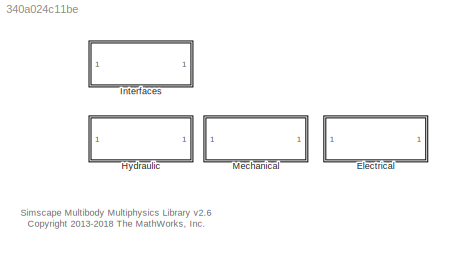
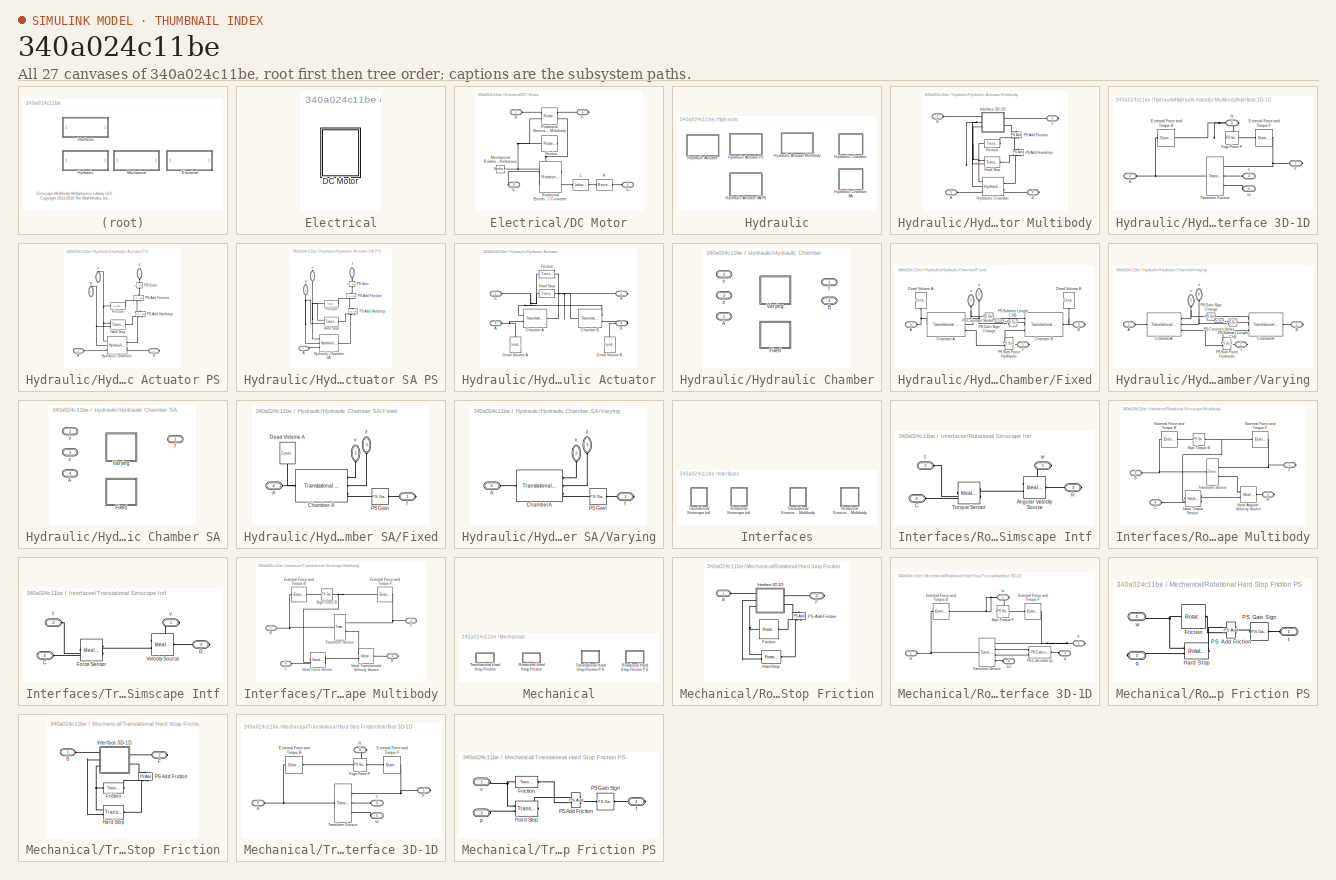
[diagram: thumbnail index - all 27 canvases of the model, root first then tree order]
MODEL slx_340a024c11be
KIND library
CONFIG AbsTol = auto
CONFIG EnableMultiTasking = on
CONFIG FixedStep = auto
CONFIG MaxStep = auto
CONFIG MinStep = auto
CONFIG RelTol = 1e-3
CONFIG SampleTimeConstraint = Unconstrained
CONFIG Solver = ode45
CONFIG SolverName = ode45
CONFIG StartTime = 0.0
CONFIG StopTime = 10.0
BLOCK [SubSystem] Electrical
  Ports = []
  RequestExecContextInheritance = off
BLOCK [SubSystem] Electrical/DC Motor
  Ports = [0, 0, 0, 0, 0, 2, 2]
  RequestExecContextInheritance = off
  Tag = PublishSubsystem
BLOCK [PMIOPort] Electrical/DC Motor/B
  Side = Left
BLOCK [PMIOPort] Electrical/DC Motor/F
  Port = 3
  Side = Right
BLOCK [Reference] Electrical/DC Motor/Friction  REF=fl_lib/Mechanical/Rotational Elements/Rotational Friction
  Ports = [0, 0, 0, 0, 0, 1, 1]
  SourceBlock = fl_lib/Mechanical/Rotational Elements/Rotational Friction
  SourceProductBaseCode = SS
  SourceProductName = Simscape
  SourceType = Rotational Friction
BLOCK [Reference] Electrical/DC Motor/L  REF=fl_lib/Electrical/Electrical Elements/Inductor
  Ports = [0, 0, 0, 0, 0, 1, 1]
  SourceBlock = fl_lib/Electrical/Electrical Elements/Inductor
  SourceProductBaseCode = SS
  SourceProductName = Simscape
  SourceType = Inductor
BLOCK [Reference] Electrical/DC Motor/Mechanical Rotational Reference  REF=fl_lib/Mechanical/Rotational Elements/Mechanical
Rotational Reference
  Ports = [0, 0, 0, 0, 0, 1]
  SourceBlock = fl_lib/Mechanical/Rotational Elements/Mechanical\nRotational Reference
  SourceProductBaseCode = SS
  SourceProductName = Simscape
  SourceType = Mechanical\nRotational Reference
BLOCK [Reference] Electrical/DC Motor/R  REF=fl_lib/Electrical/Electrical Elements/Resistor
  Ports = [0, 0, 0, 0, 0, 1, 1]
  SourceBlock = fl_lib/Electrical/Electrical Elements/Resistor
  SourceProductBaseCode = SS
  SourceProductName = Simscape
  SourceType = Resistor
  Tag = Factory Generic
BLOCK [Reference] Electrical/DC Motor/Rotational Electromechanical Converter  REF=fl_lib/Electrical/Electrical Elements/Rotational
Electromechanical
Converter
  Ports = [0, 0, 0, 0, 0, 2, 2]
  SourceBlock = fl_lib/Electrical/Electrical Elements/Rotational\nElectromechanical\nConverter
  SourceProductBaseCode = SS
  SourceProductName = Simscape
  SourceType = Rotational\nElectromechanical\nConverter
BLOCK [Reference] Electrical/DC Motor/Rotational Simscape Multibody  REF=$bdroot/Interfaces/Rotational
Simscape Multibody
  Ports = [0, 0, 0, 0, 0, 2, 2]
  SourceBlock = $bdroot/Interfaces/Rotational\nSimscape Multibody
  SourceType = SubSystem
  Tag = PublishSubsystem
BLOCK [PMIOPort] Electrical/DC Motor/V+
  Port = 2
  Side = Left
BLOCK [PMIOPort] Electrical/DC Motor/V-
  Port = 4
  Side = Right
BLOCK [SubSystem] Hydraulic
  Ports = []
  RequestExecContextInheritance = off
BLOCK [SubSystem] Hydraulic/Hydraulic Actuator
  Ports = [0, 0, 0, 0, 0, 2, 2]
  RequestExecContextInheritance = off
BLOCK [SubSystem] Hydraulic/Hydraulic Actuator Multibody
  Ports = [0, 0, 0, 0, 0, 2, 2]
  RequestExecContextInheritance = off
BLOCK [PMIOPort] Hydraulic/Hydraulic Actuator Multibody/ B
  Port = 4
  Side = Right
BLOCK [PMIOPort] Hydraulic/Hydraulic Actuator Multibody/A
  Port = 3
  Side = Left
BLOCK [PMIOPort] Hydraulic/Hydraulic Actuator Multibody/B 
  Side = Left
  Tag = CustomStyle
BLOCK [PMIOPort] Hydraulic/Hydraulic Actuator Multibody/F
  Port = 2
  Side = Right
  Tag = CustomStyle
BLOCK [Reference] Hydraulic/Hydraulic Actuator Multibody/Friction  REF=forcesPS_lib/Mechanical/Translational
Friction Force
  Ports = [0, 0, 0, 0, 0, 1, 1]
  SourceBlock = forcesPS_lib/Mechanical/Translational\nFriction Force
  SourceType = Translational\nFriction Force
BLOCK [Reference] Hydraulic/Hydraulic Actuator Multibody/Hard Stop  REF=forcesPS_lib/Mechanical/Translational Hard
Stop Force
  Ports = [0, 0, 0, 0, 0, 2, 1]
  SourceBlock = forcesPS_lib/Mechanical/Translational Hard\nStop Force
  SourceType = Translational Hard\nStop Force
BLOCK [Reference] Hydraulic/Hydraulic Actuator Multibody/Hydraulic Chamber  REF=$bdroot/Hydraulic/Hydraulic Chamber
  Ports = [0, 0, 0, 0, 0, 3, 2]
  SourceBlock = $bdroot/Hydraulic/Hydraulic Chamber
  SourceType = SubSystem
BLOCK [SubSystem] Hydraulic/Hydraulic Actuator Multibody/Interface 3D-1D
  Ports = [0, 0, 0, 0, 0, 3, 2]
  RequestExecContextInheritance = off
BLOCK [PMIOPort] Hydraulic/Hydraulic Actuator Multibody/Interface 3D-1D/B
  Port = 2
  Side = Left
BLOCK [Reference] Hydraulic/Hydraulic Actuator Multibody/Interface 3D-1D/External Force and Torque B  REF=sm_lib/Forces and
Torques/External Force
and Torque
  Ports = [0, 0, 0, 0, 0, 1, 1]
  SourceBlock = sm_lib/Forces and\nTorques/External Force\nand Torque
  SourceProductBaseCode = MS
  SourceProductName = Simscape Multibody
  SourceType = External Force\nand Torque
BLOCK [Reference] Hydraulic/Hydraulic Actuator Multibody/Interface 3D-1D/External Force and Torque F  REF=sm_lib/Forces and
Torques/External Force
and Torque
  Ports = [0, 0, 0, 0, 0, 1, 1]
  SourceBlock = sm_lib/Forces and\nTorques/External Force\nand Torque
  SourceProductBaseCode = MS
  SourceProductName = Simscape Multibody
  SourceType = External Force\nand Torque
BLOCK [PMIOPort] Hydraulic/Hydraulic Actuator Multibody/Interface 3D-1D/F
  Side = Right
BLOCK [Reference] Hydraulic/Hydraulic Actuator Multibody/Interface 3D-1D/Sign Force F  REF=fl_lib/Physical Signals/Functions/PS Gain
  Ports = [0, 0, 0, 0, 0, 1, 1]
  SourceBlock = fl_lib/Physical Signals/Functions/PS Gain
  SourceProductBaseCode = SS
  SourceProductName = Simscape
  SourceType = PS Gain
BLOCK [Reference] Hydraulic/Hydraulic Actuator Multibody/Interface 3D-1D/Transform Sensor  REF=sm_lib/Frames and
Transforms/Transform
Sensor
  Ports = [0, 0, 0, 0, 0, 1, 3]
  SourceBlock = sm_lib/Frames and\nTransforms/Transform\nSensor
  SourceProductBaseCode = MS
  SourceProductName = Simscape Multibody
  SourceType = Transform\nSensor
BLOCK [PMIOPort] Hydraulic/Hydraulic Actuator Multibody/Interface 3D-1D/fz
  Port = 5
  Side = Right
BLOCK [PMIOPort] Hydraulic/Hydraulic Actuator Multibody/Interface 3D-1D/vz
  Port = 4
  Side = Left
BLOCK [PMIOPort] Hydraulic/Hydraulic Actuator Multibody/Interface 3D-1D/z
  Port = 3
  Side = Left
BLOCK [Reference] Hydraulic/Hydraulic Actuator Multibody/PS Add Friction  REF=fl_lib/Physical Signals/Functions/PS Add
  Ports = [0, 0, 0, 0, 0, 2, 1]
  SourceBlock = fl_lib/Physical Signals/Functions/PS Add
  SourceProductBaseCode = SS
  SourceProductName = Simscape
  SourceType = PS Add
BLOCK [Reference] Hydraulic/Hydraulic Actuator Multibody/PS Add Hardstop  REF=fl_lib/Physical Signals/Functions/PS Add
  Ports = [0, 0, 0, 0, 0, 2, 1]
  SourceBlock = fl_lib/Physical Signals/Functions/PS Add
  SourceProductBaseCode = SS
  SourceProductName = Simscape
  SourceType = PS Add
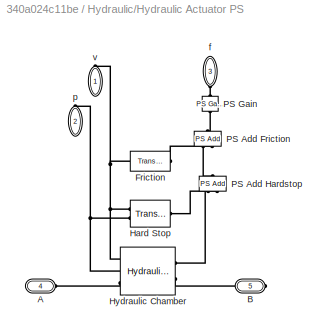
BLOCK [SubSystem] Hydraulic/Hydraulic Actuator PS
  Ports = [0, 0, 0, 0, 0, 2, 3]
  RequestExecContextInheritance = off
BLOCK [PMIOPort] Hydraulic/Hydraulic Actuator PS/A
  Port = 4
  Side = Left
BLOCK [PMIOPort] Hydraulic/Hydraulic Actuator PS/B
  Port = 5
  Side = Right
BLOCK [Reference] Hydraulic/Hydraulic Actuator PS/Friction  REF=forcesPS_lib/Mechanical/Translational
Friction Force
  Ports = [0, 0, 0, 0, 0, 1, 1]
  SourceBlock = forcesPS_lib/Mechanical/Translational\nFriction Force
  SourceType = Translational\nFriction Force
BLOCK [Reference] Hydraulic/Hydraulic Actuator PS/Hard Stop  REF=forcesPS_lib/Mechanical/Translational Hard
Stop Force
  Ports = [0, 0, 0, 0, 0, 2, 1]
  SourceBlock = forcesPS_lib/Mechanical/Translational Hard\nStop Force
  SourceType = Translational Hard\nStop Force
BLOCK [Reference] Hydraulic/Hydraulic Actuator PS/Hydraulic Chamber  REF=$bdroot/Hydraulic/Hydraulic Chamber
  Ports = [0, 0, 0, 0, 0, 3, 2]
  SourceBlock = $bdroot/Hydraulic/Hydraulic Chamber
  SourceType = SubSystem
BLOCK [Reference] Hydraulic/Hydraulic Actuator PS/PS Add Friction  REF=fl_lib/Physical Signals/Functions/PS Add
  Ports = [0, 0, 0, 0, 0, 2, 1]
  SourceBlock = fl_lib/Physical Signals/Functions/PS Add
  SourceProductBaseCode = SS
  SourceProductName = Simscape
  SourceType = PS Add
BLOCK [Reference] Hydraulic/Hydraulic Actuator PS/PS Add Hardstop  REF=fl_lib/Physical Signals/Functions/PS Add
  Ports = [0, 0, 0, 0, 0, 2, 1]
  SourceBlock = fl_lib/Physical Signals/Functions/PS Add
  SourceProductBaseCode = SS
  SourceProductName = Simscape
  SourceType = PS Add
BLOCK [Reference] Hydraulic/Hydraulic Actuator PS/PS Gain  REF=fl_lib/Physical Signals/Functions/PS Gain
  Ports = [0, 0, 0, 0, 0, 1, 1]
  SourceBlock = fl_lib/Physical Signals/Functions/PS Gain
  SourceProductBaseCode = SS
  SourceProductName = Simscape
  SourceType = PS Gain
BLOCK [PMIOPort] Hydraulic/Hydraulic Actuator PS/f
  Port = 3
  Side = Left
BLOCK [PMIOPort] Hydraulic/Hydraulic Actuator PS/p
  Port = 2
  Side = Right
BLOCK [PMIOPort] Hydraulic/Hydraulic Actuator PS/v
  Side = Right
BLOCK [SubSystem] Hydraulic/Hydraulic Actuator SA PS
  Ports = [0, 0, 0, 0, 0, 2, 2]
  RequestExecContextInheritance = off
BLOCK [PMIOPort] Hydraulic/Hydraulic Actuator SA PS/A
  Port = 4
  Side = Left
BLOCK [Reference] Hydraulic/Hydraulic Actuator SA PS/Friction  REF=forcesPS_lib/Mechanical/Translational
Friction Force
  Ports = [0, 0, 0, 0, 0, 1, 1]
  SourceBlock = forcesPS_lib/Mechanical/Translational\nFriction Force
  SourceType = Translational\nFriction Force
BLOCK [Reference] Hydraulic/Hydraulic Actuator SA PS/Hard Stop  REF=forcesPS_lib/Mechanical/Translational Hard
Stop Force
  Ports = [0, 0, 0, 0, 0, 2, 1]
  SourceBlock = forcesPS_lib/Mechanical/Translational Hard\nStop Force
  SourceType = Translational Hard\nStop Force
BLOCK [Reference] Hydraulic/Hydraulic Actuator SA PS/Hydraulic Chamber SA  REF=$bdroot/Hydraulic/Hydraulic Chamber SA
  Ports = [0, 0, 0, 0, 0, 3, 1]
  SourceBlock = $bdroot/Hydraulic/Hydraulic Chamber SA
  SourceType = SubSystem
BLOCK [Reference] Hydraulic/Hydraulic Actuator SA PS/PS Add Friction  REF=fl_lib/Physical Signals/Functions/PS Add
  Ports = [0, 0, 0, 0, 0, 2, 1]
  SourceBlock = fl_lib/Physical Signals/Functions/PS Add
  SourceProductBaseCode = SS
  SourceProductName = Simscape
  SourceType = PS Add
BLOCK [Reference] Hydraulic/Hydraulic Actuator SA PS/PS Add Hardstop  REF=fl_lib/Physical Signals/Functions/PS Add
  Ports = [0, 0, 0, 0, 0, 2, 1]
  SourceBlock = fl_lib/Physical Signals/Functions/PS Add
  SourceProductBaseCode = SS
  SourceProductName = Simscape
  SourceType = PS Add
BLOCK [Reference] Hydraulic/Hydraulic Actuator SA PS/PS Gain  REF=fl_lib/Physical Signals/Functions/PS Gain
  Ports = [0, 0, 0, 0, 0, 1, 1]
  SourceBlock = fl_lib/Physical Signals/Functions/PS Gain
  SourceProductBaseCode = SS
  SourceProductName = Simscape
  SourceType = PS Gain
BLOCK [PMIOPort] Hydraulic/Hydraulic Actuator SA PS/f
  Port = 3
  Side = Left
BLOCK [PMIOPort] Hydraulic/Hydraulic Actuator SA PS/p
  Port = 2
  Side = Right
BLOCK [PMIOPort] Hydraulic/Hydraulic Actuator SA PS/v
  Side = Right
BLOCK [PMIOPort] Hydraulic/Hydraulic Actuator/A
  Port = 3
  Side = Left
  Tag = PMCPort
BLOCK [PMIOPort] Hydraulic/Hydraulic Actuator/B
  Port = 4
  Side = Right
  Tag = PMCPort
BLOCK [PMIOPort] Hydraulic/Hydraulic Actuator/C
  Port = 2
  Side = Left
  Tag = CustomStyle
BLOCK [Reference] Hydraulic/Hydraulic Actuator/Chamber A  REF=fl_lib/Hydraulic/Hydraulic Elements/Translational
Hydro-Mechanical
Converter
  Ports = [0, 0, 0, 0, 0, 2, 1]
  SourceBlock = fl_lib/Hydraulic/Hydraulic Elements/Translational\nHydro-Mechanical\nConverter
  SourceProductBaseCode = SS
  SourceProductName = Simscape
  SourceType = Translational\nHydro-Mechanical\nConverter
BLOCK [Reference] Hydraulic/Hydraulic Actuator/Chamber B  REF=fl_lib/Hydraulic/Hydraulic Elements/Translational
Hydro-Mechanical
Converter
  Ports = [0, 0, 0, 0, 0, 2, 1]
  SourceBlock = fl_lib/Hydraulic/Hydraulic Elements/Translational\nHydro-Mechanical\nConverter
  SourceProductBaseCode = SS
  SourceProductName = Simscape
  SourceType = Translational\nHydro-Mechanical\nConverter
BLOCK [Reference] Hydraulic/Hydraulic Actuator/Dead Volume A  REF=fl_lib/Hydraulic/Hydraulic Elements/Constant Volume
Hydraulic Chamber
  Ports = [0, 0, 0, 0, 0, 1]
  SourceBlock = fl_lib/Hydraulic/Hydraulic Elements/Constant Volume\nHydraulic Chamber
  SourceProductBaseCode = SS
  SourceProductName = Simscape
  SourceType = Constant Volume\nHydraulic Chamber
BLOCK [Reference] Hydraulic/Hydraulic Actuator/Dead Volume B  REF=fl_lib/Hydraulic/Hydraulic Elements/Constant Volume
Hydraulic Chamber
  Ports = [0, 0, 0, 0, 0, 1]
  SourceBlock = fl_lib/Hydraulic/Hydraulic Elements/Constant Volume\nHydraulic Chamber
  SourceProductBaseCode = SS
  SourceProductName = Simscape
  SourceType = Constant Volume\nHydraulic Chamber
BLOCK [Reference] Hydraulic/Hydraulic Actuator/Friction  REF=fl_lib/Mechanical/Translational
Elements/Translational
Friction
  Ports = [0, 0, 0, 0, 0, 1, 1]
  SourceBlock = fl_lib/Mechanical/Translational\nElements/Translational\nFriction
  SourceProductBaseCode = SS
  SourceProductName = Simscape
  SourceType = Translational\nFriction
BLOCK [Reference] Hydraulic/Hydraulic Actuator/Hard Stop  REF=fl_lib/Mechanical/Translational
Elements/Translational Hard
Stop
  Ports = [0, 0, 0, 0, 0, 1, 1]
  SourceBlock = fl_lib/Mechanical/Translational\nElements/Translational Hard\nStop
  SourceProductBaseCode = SS
  SourceProductName = Simscape
  SourceType = Translational Hard\nStop
BLOCK [PMIOPort] Hydraulic/Hydraulic Actuator/R
  Side = Right
  Tag = CustomStyle
BLOCK [SubSystem] Hydraulic/Hydraulic Chamber
  OverrideUsingVariant = Fixed
  Ports = [0, 0, 0, 0, 0, 3, 2]
  RequestExecContextInheritance = off
  Variant = on
BLOCK [SubSystem] Hydraulic/Hydraulic Chamber SA
  OverrideUsingVariant = Fixed
  Ports = [0, 0, 0, 0, 0, 3, 1]
  RequestExecContextInheritance = off
  Variant = on
BLOCK [PMIOPort] Hydraulic/Hydraulic Chamber SA/A
  Port = 4
  Side = Left
BLOCK [SubSystem] Hydraulic/Hydraulic Chamber SA/Fixed
  Ports = [0, 0, 0, 0, 0, 3, 1]
  RequestExecContextInheritance = off
  VariantControl = Fixed
BLOCK [PMIOPort] Hydraulic/Hydraulic Chamber SA/Fixed/A
  Port = 4
  Side = Left
BLOCK [Reference] Hydraulic/Hydraulic Chamber SA/Fixed/Chamber A  REF=forcesPS_lib/Hydraulic/Translational
Hydraulic Chamber
Force Incompressible
  Ports = [0, 0, 0, 0, 0, 3, 1]
  SourceBlock = forcesPS_lib/Hydraulic/Translational\nHydraulic Chamber\nForce Incompressible
  SourceType = Translational\nHydraulic Chamber\nForce Incompressible
BLOCK [Reference] Hydraulic/Hydraulic Chamber SA/Fixed/Dead Volume A  REF=fl_lib/Hydraulic/Hydraulic Elements/Constant Volume
Hydraulic Chamber
  Ports = [0, 0, 0, 0, 0, 1]
  SourceBlock = fl_lib/Hydraulic/Hydraulic Elements/Constant Volume\nHydraulic Chamber
  SourceProductBaseCode = SS
  SourceProductName = Simscape
  SourceType = Constant Volume\nHydraulic Chamber
BLOCK [Reference] Hydraulic/Hydraulic Chamber SA/Fixed/PS Gain  REF=fl_lib/Physical Signals/Functions/PS Gain
  Ports = [0, 0, 0, 0, 0, 1, 1]
  SourceBlock = fl_lib/Physical Signals/Functions/PS Gain
  SourceProductBaseCode = SS
  SourceProductName = Simscape
  SourceType = PS Gain
BLOCK [PMIOPort] Hydraulic/Hydraulic Chamber SA/Fixed/f
  Side = Right
BLOCK [PMIOPort] Hydraulic/Hydraulic Chamber SA/Fixed/v
  Port = 2
  Side = Left
BLOCK [PMIOPort] Hydraulic/Hydraulic Chamber SA/Fixed/z
  Port = 3
  Side = Left
BLOCK [SubSystem] Hydraulic/Hydraulic Chamber SA/Varying
  Ports = [0, 0, 0, 0, 0, 3, 1]
  RequestExecContextInheritance = off
  VariantControl = Varying
BLOCK [PMIOPort] Hydraulic/Hydraulic Chamber SA/Varying/A
  Port = 4
  Side = Left
BLOCK [Reference] Hydraulic/Hydraulic Chamber SA/Varying/ChamberA  REF=forcesPS_lib/Hydraulic/Translational
Hydraulic Chamber
Force Compressible
  Ports = [0, 0, 0, 0, 0, 3, 1]
  SourceBlock = forcesPS_lib/Hydraulic/Translational\nHydraulic Chamber\nForce Compressible
  SourceType = Translational\nHydraulic Chamber\nForce Compressible
BLOCK [Reference] Hydraulic/Hydraulic Chamber SA/Varying/PS Gain  REF=fl_lib/Physical Signals/Functions/PS Gain
  Ports = [0, 0, 0, 0, 0, 1, 1]
  SourceBlock = fl_lib/Physical Signals/Functions/PS Gain
  SourceProductBaseCode = SS
  SourceProductName = Simscape
  SourceType = PS Gain
BLOCK [PMIOPort] Hydraulic/Hydraulic Chamber SA/Varying/f
  Side = Right
BLOCK [PMIOPort] Hydraulic/Hydraulic Chamber SA/Varying/v
  Port = 2
  Side = Left
BLOCK [PMIOPort] Hydraulic/Hydraulic Chamber SA/Varying/z
  Port = 3
  Side = Left
BLOCK [PMIOPort] Hydraulic/Hydraulic Chamber SA/f
  Side = Right
BLOCK [PMIOPort] Hydraulic/Hydraulic Chamber SA/v
  Port = 2
  Side = Left
BLOCK [PMIOPort] Hydraulic/Hydraulic Chamber SA/z
  Port = 3
  Side = Left
BLOCK [PMIOPort] Hydraulic/Hydraulic Chamber/A
  Port = 5
  Side = Left
BLOCK [PMIOPort] Hydraulic/Hydraulic Chamber/B
  Port = 4
  Side = Right
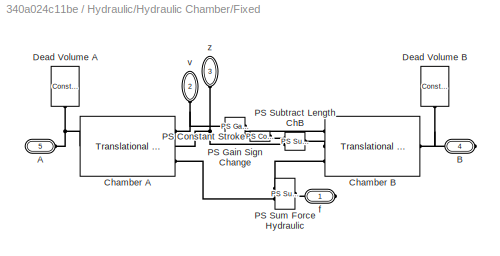
BLOCK [SubSystem] Hydraulic/Hydraulic Chamber/Fixed
  Ports = [0, 0, 0, 0, 0, 3, 2]
  RequestExecContextInheritance = off
  VariantControl = Fixed
BLOCK [PMIOPort] Hydraulic/Hydraulic Chamber/Fixed/A
  Port = 5
  Side = Left
BLOCK [PMIOPort] Hydraulic/Hydraulic Chamber/Fixed/B
  Port = 4
  Side = Right
BLOCK [Reference] Hydraulic/Hydraulic Chamber/Fixed/Chamber A  REF=forcesPS_lib/Hydraulic/Translational
Hydraulic Chamber
Force Incompressible
  Ports = [0, 0, 0, 0, 0, 3, 1]
  SourceBlock = forcesPS_lib/Hydraulic/Translational\nHydraulic Chamber\nForce Incompressible
  SourceType = Translational\nHydraulic Chamber\nForce Incompressible
BLOCK [Reference] Hydraulic/Hydraulic Chamber/Fixed/Chamber B  REF=forcesPS_lib/Hydraulic/Translational
Hydraulic Chamber
Force Incompressible
  Ports = [0, 0, 0, 0, 0, 3, 1]
  SourceBlock = forcesPS_lib/Hydraulic/Translational\nHydraulic Chamber\nForce Incompressible
  SourceType = Translational\nHydraulic Chamber\nForce Incompressible
BLOCK [Reference] Hydraulic/Hydraulic Chamber/Fixed/Dead Volume A  REF=fl_lib/Hydraulic/Hydraulic Elements/Constant Volume
Hydraulic Chamber
  Ports = [0, 0, 0, 0, 0, 1]
  SourceBlock = fl_lib/Hydraulic/Hydraulic Elements/Constant Volume\nHydraulic Chamber
  SourceProductBaseCode = SS
  SourceProductName = Simscape
  SourceType = Constant Volume\nHydraulic Chamber
BLOCK [Reference] Hydraulic/Hydraulic Chamber/Fixed/Dead Volume B  REF=fl_lib/Hydraulic/Hydraulic Elements/Constant Volume
Hydraulic Chamber
  Ports = [0, 0, 0, 0, 0, 1]
  SourceBlock = fl_lib/Hydraulic/Hydraulic Elements/Constant Volume\nHydraulic Chamber
  SourceProductBaseCode = SS
  SourceProductName = Simscape
  SourceType = Constant Volume\nHydraulic Chamber
BLOCK [Reference] Hydraulic/Hydraulic Chamber/Fixed/PS Constant Stroke  REF=fl_lib/Physical Signals/Sources/PS Constant
  Ports = [0, 0, 0, 0, 0, 0, 1]
  SourceBlock = fl_lib/Physical Signals/Sources/PS Constant
  SourceProductBaseCode = SS
  SourceProductName = Simscape
  SourceType = PS Constant
BLOCK [Reference] Hydraulic/Hydraulic Chamber/Fixed/PS Gain Sign Change  REF=fl_lib/Physical Signals/Functions/PS Gain
  Ports = [0, 0, 0, 0, 0, 1, 1]
  SourceBlock = fl_lib/Physical Signals/Functions/PS Gain
  SourceProductBaseCode = SS
  SourceProductName = Simscape
  SourceType = PS Gain
BLOCK [Reference] Hydraulic/Hydraulic Chamber/Fixed/PS Subtract Length ChB  REF=fl_lib/Physical Signals/Functions/PS Subtract
  Ports = [0, 0, 0, 0, 0, 2, 1]
  SourceBlock = fl_lib/Physical Signals/Functions/PS Subtract
  SourceProductBaseCode = SS
  SourceProductName = Simscape
  SourceType = PS Subtract
BLOCK [Reference] Hydraulic/Hydraulic Chamber/Fixed/PS Sum Force Hydraulic  REF=fl_lib/Physical Signals/Functions/PS Subtract
  Ports = [0, 0, 0, 0, 0, 2, 1]
  SourceBlock = fl_lib/Physical Signals/Functions/PS Subtract
  SourceProductBaseCode = SS
  SourceProductName = Simscape
  SourceType = PS Subtract
BLOCK [PMIOPort] Hydraulic/Hydraulic Chamber/Fixed/f
  Side = Right
BLOCK [PMIOPort] Hydraulic/Hydraulic Chamber/Fixed/v
  Port = 2
  Side = Left
BLOCK [PMIOPort] Hydraulic/Hydraulic Chamber/Fixed/z
  Port = 3
  Side = Left
BLOCK [SubSystem] Hydraulic/Hydraulic Chamber/Varying
  Ports = [0, 0, 0, 0, 0, 3, 2]
  RequestExecContextInheritance = off
  VariantControl = Varying
BLOCK [PMIOPort] Hydraulic/Hydraulic Chamber/Varying/A
  Port = 5
  Side = Left
BLOCK [PMIOPort] Hydraulic/Hydraulic Chamber/Varying/B
  Port = 2
  Side = Right
BLOCK [Reference] Hydraulic/Hydraulic Chamber/Varying/ChamberA  REF=forcesPS_lib/Hydraulic/Translational
Hydraulic Chamber
Force Compressible
  Ports = [0, 0, 0, 0, 0, 3, 1]
  SourceBlock = forcesPS_lib/Hydraulic/Translational\nHydraulic Chamber\nForce Compressible
  SourceType = Translational\nHydraulic Chamber\nForce Compressible
BLOCK [Reference] Hydraulic/Hydraulic Chamber/Varying/ChamberB  REF=forcesPS_lib/Hydraulic/Translational
Hydraulic Chamber
Force Compressible
  Ports = [0, 0, 0, 0, 0, 3, 1]
  SourceBlock = forcesPS_lib/Hydraulic/Translational\nHydraulic Chamber\nForce Compressible
  SourceType = Translational\nHydraulic Chamber\nForce Compressible
BLOCK [Reference] Hydraulic/Hydraulic Chamber/Varying/PS Constant Stroke  REF=fl_lib/Physical Signals/Sources/PS Constant
  Ports = [0, 0, 0, 0, 0, 0, 1]
  SourceBlock = fl_lib/Physical Signals/Sources/PS Constant
  SourceProductBaseCode = SS
  SourceProductName = Simscape
  SourceType = PS Constant
BLOCK [Reference] Hydraulic/Hydraulic Chamber/Varying/PS Gain Sign Change  REF=fl_lib/Physical Signals/Functions/PS Gain
  Ports = [0, 0, 0, 0, 0, 1, 1]
  SourceBlock = fl_lib/Physical Signals/Functions/PS Gain
  SourceProductBaseCode = SS
  SourceProductName = Simscape
  SourceType = PS Gain
BLOCK [Reference] Hydraulic/Hydraulic Chamber/Varying/PS Subtract Length ChB  REF=fl_lib/Physical Signals/Functions/PS Subtract
  Ports = [0, 0, 0, 0, 0, 2, 1]
  SourceBlock = fl_lib/Physical Signals/Functions/PS Subtract
  SourceProductBaseCode = SS
  SourceProductName = Simscape
  SourceType = PS Subtract
BLOCK [Reference] Hydraulic/Hydraulic Chamber/Varying/PS Sum Force Hydraulic  REF=fl_lib/Physical Signals/Functions/PS Subtract
  Ports = [0, 0, 0, 0, 0, 2, 1]
  SourceBlock = fl_lib/Physical Signals/Functions/PS Subtract
  SourceProductBaseCode = SS
  SourceProductName = Simscape
  SourceType = PS Subtract
BLOCK [PMIOPort] Hydraulic/Hydraulic Chamber/Varying/f
  Side = Right
BLOCK [PMIOPort] Hydraulic/Hydraulic Chamber/Varying/v
  Port = 3
  Side = Left
BLOCK [PMIOPort] Hydraulic/Hydraulic Chamber/Varying/z
  Port = 4
  Side = Left
BLOCK [PMIOPort] Hydraulic/Hydraulic Chamber/f
  Side = Right
BLOCK [PMIOPort] Hydraulic/Hydraulic Chamber/v
  Port = 2
  Side = Left
BLOCK [PMIOPort] Hydraulic/Hydraulic Chamber/z
  Port = 3
  Side = Left
BLOCK [SubSystem] Interfaces
  Ports = []
  RequestExecContextInheritance = off
BLOCK [SubSystem] Interfaces/Rotational Simscape Intf
  Ports = [0, 0, 0, 0, 0, 2, 2]
  RequestExecContextInheritance = off
BLOCK [Reference] Interfaces/Rotational Simscape Intf/Angular Velocity Source  REF=fl_lib/Mechanical/Mechanical Sources/Ideal Angular
Velocity Source
  Ports = [0, 0, 0, 0, 0, 1, 2]
  SourceBlock = fl_lib/Mechanical/Mechanical Sources/Ideal Angular\nVelocity Source
  SourceProductBaseCode = SS
  SourceProductName = Simscape
  SourceType = Ideal Angular\nVelocity Source
BLOCK [PMIOPort] Interfaces/Rotational Simscape Intf/C
  Port = 4
  Side = Left
BLOCK [PMIOPort] Interfaces/Rotational Simscape Intf/R
  Port = 3
  Side = Right
BLOCK [Reference] Interfaces/Rotational Simscape Intf/Torque Sensor  REF=fl_lib/Mechanical/Mechanical Sensors/Ideal Torque Sensor
  Ports = [0, 0, 0, 0, 0, 1, 2]
  SourceBlock = fl_lib/Mechanical/Mechanical Sensors/Ideal Torque Sensor
  SourceProductBaseCode = SS
  SourceProductName = Simscape
  SourceType = Ideal Torque Sensor
BLOCK [PMIOPort] Interfaces/Rotational Simscape Intf/t
  Port = 2
  Side = Left
BLOCK [PMIOPort] Interfaces/Rotational Simscape Intf/w
  Side = Right
BLOCK [SubSystem] Interfaces/Rotational Simscape Multibody
  Ports = [0, 0, 0, 0, 0, 2, 2]
  RequestExecContextInheritance = off
BLOCK [PMIOPort] Interfaces/Rotational Simscape Multibody/B
  Port = 2
  Side = Left
BLOCK [PMIOPort] Interfaces/Rotational Simscape Multibody/C
  Port = 4
  Side = Left
BLOCK [Reference] Interfaces/Rotational Simscape Multibody/External Force and Torque B  REF=sm_lib/Forces and
Torques/External Force
and Torque
  Ports = [0, 0, 0, 0, 0, 1, 1]
  SourceBlock = sm_lib/Forces and\nTorques/External Force\nand Torque
  SourceProductBaseCode = MS
  SourceProductName = Simscape Multibody
  SourceType = External Force\nand Torque
BLOCK [Reference] Interfaces/Rotational Simscape Multibody/External Force and Torque F  REF=sm_lib/Forces and
Torques/External Force
and Torque
  Ports = [0, 0, 0, 0, 0, 1, 1]
  SourceBlock = sm_lib/Forces and\nTorques/External Force\nand Torque
  SourceProductBaseCode = MS
  SourceProductName = Simscape Multibody
  SourceType = External Force\nand Torque
BLOCK [PMIOPort] Interfaces/Rotational Simscape Multibody/F
  Side = Right
BLOCK [Reference] Interfaces/Rotational Simscape Multibody/Ideal Angular Velocity Source  REF=fl_lib/Mechanical/Mechanical Sources/Ideal Angular
Velocity Source
  Ports = [0, 0, 0, 0, 0, 1, 2]
  SourceBlock = fl_lib/Mechanical/Mechanical Sources/Ideal Angular\nVelocity Source
  SourceProductBaseCode = SS
  SourceProductName = Simscape
  SourceType = Ideal Angular\nVelocity Source
BLOCK [Reference] Interfaces/Rotational Simscape Multibody/Ideal Torque Sensor  REF=fl_lib/Mechanical/Mechanical Sensors/Ideal Torque Sensor
  Ports = [0, 0, 0, 0, 0, 1, 2]
  SourceBlock = fl_lib/Mechanical/Mechanical Sensors/Ideal Torque Sensor
  SourceProductBaseCode = SS
  SourceProductName = Simscape
  SourceType = Ideal Torque Sensor
BLOCK [PMIOPort] Interfaces/Rotational Simscape Multibody/R
  Port = 3
  Side = Right
BLOCK [Reference] Interfaces/Rotational Simscape Multibody/Sign Torque B  REF=fl_lib/Physical Signals/Functions/PS Gain
  Ports = [0, 0, 0, 0, 0, 1, 1]
  SourceBlock = fl_lib/Physical Signals/Functions/PS Gain
  SourceProductBaseCode = SS
  SourceProductName = Simscape
  SourceType = PS Gain
BLOCK [Reference] Interfaces/Rotational Simscape Multibody/Transform Sensor  REF=sm_lib/Frames and
Transforms/Transform
Sensor
  Ports = [0, 0, 0, 0, 0, 1, 2]
  SourceBlock = sm_lib/Frames and\nTransforms/Transform\nSensor
  SourceProductBaseCode = MS
  SourceProductName = Simscape Multibody
  SourceType = Transform\nSensor
BLOCK [SubSystem] Interfaces/Translational Simscape Intf
  Ports = [0, 0, 0, 0, 0, 2, 2]
  RequestExecContextInheritance = off
BLOCK [PMIOPort] Interfaces/Translational Simscape Intf/C
  Port = 4
  Side = Left
BLOCK [Reference] Interfaces/Translational Simscape Intf/Force Sensor  REF=fl_lib/Mechanical/Mechanical Sensors/Ideal Force Sensor
  Ports = [0, 0, 0, 0, 0, 1, 2]
  SourceBlock = fl_lib/Mechanical/Mechanical Sensors/Ideal Force Sensor
  SourceProductBaseCode = SS
  SourceProductName = Simscape
  SourceType = Ideal Force Sensor
BLOCK [PMIOPort] Interfaces/Translational Simscape Intf/R
  Port = 3
  Side = Right
BLOCK [Reference] Interfaces/Translational Simscape Intf/Velocity Source  REF=fl_lib/Mechanical/Mechanical Sources/Ideal Translational
Velocity Source
  Ports = [0, 0, 0, 0, 0, 1, 2]
  SourceBlock = fl_lib/Mechanical/Mechanical Sources/Ideal Translational\nVelocity Source
  SourceProductBaseCode = SS
  SourceProductName = Simscape
  SourceType = Ideal Translational\nVelocity Source
BLOCK [PMIOPort] Interfaces/Translational Simscape Intf/f
  Port = 2
  Side = Left
BLOCK [PMIOPort] Interfaces/Translational Simscape Intf/v
  Side = Right
BLOCK [SubSystem] Interfaces/Translational Simscape Multibody
  Ports = [0, 0, 0, 0, 0, 2, 2]
  RequestExecContextInheritance = off
BLOCK [PMIOPort] Interfaces/Translational Simscape Multibody/B
  Side = Left
BLOCK [PMIOPort] Interfaces/Translational Simscape Multibody/C
  Port = 4
  Side = Left
BLOCK [Reference] Interfaces/Translational Simscape Multibody/External Force and Torque B  REF=sm_lib/Forces and
Torques/External Force
and Torque
  Ports = [0, 0, 0, 0, 0, 1, 1]
  SourceBlock = sm_lib/Forces and\nTorques/External Force\nand Torque
  SourceProductBaseCode = MS
  SourceProductName = Simscape Multibody
  SourceType = External Force\nand Torque
BLOCK [Reference] Interfaces/Translational Simscape Multibody/External Force and Torque F  REF=sm_lib/Forces and
Torques/External Force
and Torque
  Ports = [0, 0, 0, 0, 0, 1, 1]
  SourceBlock = sm_lib/Forces and\nTorques/External Force\nand Torque
  SourceProductBaseCode = MS
  SourceProductName = Simscape Multibody
  SourceType = External Force\nand Torque
BLOCK [PMIOPort] Interfaces/Translational Simscape Multibody/F
  Port = 2
  Side = Right
BLOCK [Reference] Interfaces/Translational Simscape Multibody/Ideal Force Sensor  REF=fl_lib/Mechanical/Mechanical Sensors/Ideal Force Sensor
  Ports = [0, 0, 0, 0, 0, 1, 2]
  SourceBlock = fl_lib/Mechanical/Mechanical Sensors/Ideal Force Sensor
  SourceProductBaseCode = SS
  SourceProductName = Simscape
  SourceType = Ideal Force Sensor
BLOCK [Reference] Interfaces/Translational Simscape Multibody/Ideal Translational Velocity Source  REF=fl_lib/Mechanical/Mechanical Sources/Ideal Translational
Velocity Source
  Ports = [0, 0, 0, 0, 0, 1, 2]
  SourceBlock = fl_lib/Mechanical/Mechanical Sources/Ideal Translational\nVelocity Source
  SourceProductBaseCode = SS
  SourceProductName = Simscape
  SourceType = Ideal Translational\nVelocity Source
BLOCK [PMIOPort] Interfaces/Translational Simscape Multibody/R
  Port = 3
  Side = Right
BLOCK [Reference] Interfaces/Translational Simscape Multibody/Sign Force B  REF=fl_lib/Physical Signals/Functions/PS Gain
  Ports = [0, 0, 0, 0, 0, 1, 1]
  SourceBlock = fl_lib/Physical Signals/Functions/PS Gain
  SourceProductBaseCode = SS
  SourceProductName = Simscape
  SourceType = PS Gain
BLOCK [Reference] Interfaces/Translational Simscape Multibody/Transform Sensor  REF=sm_lib/Frames and
Transforms/Transform
Sensor
  Ports = [0, 0, 0, 0, 0, 1, 2]
  SourceBlock = sm_lib/Frames and\nTransforms/Transform\nSensor
  SourceProductBaseCode = MS
  SourceProductName = Simscape Multibody
  SourceType = Transform\nSensor
BLOCK [SubSystem] Mechanical
  Ports = []
  RequestExecContextInheritance = off
BLOCK [SubSystem] Mechanical/Rotational Hard Stop Friction
  Ports = [0, 0, 0, 0, 0, 1, 1]
  RequestExecContextInheritance = off
BLOCK [SubSystem] Mechanical/Rotational Hard Stop Friction PS
  Ports = [0, 0, 0, 0, 0, 1, 2]
  RequestExecContextInheritance = off
BLOCK [Reference] Mechanical/Rotational Hard Stop Friction PS/Friction  REF=forcesPS_lib/Mechanical/Rotational Friction
Force
  Ports = [0, 0, 0, 0, 0, 1, 1]
  SourceBlock = forcesPS_lib/Mechanical/Rotational Friction\nForce
  SourceType = Rotational Friction\nForce
BLOCK [Reference] Mechanical/Rotational Hard Stop Friction PS/Hard Stop  REF=forcesPS_lib/Mechanical/Rotational Hard Stop
Force
  Ports = [0, 0, 0, 0, 0, 2, 1]
  SourceBlock = forcesPS_lib/Mechanical/Rotational Hard Stop\nForce
  SourceType = Rotational Hard Stop\nForce
BLOCK [Reference] Mechanical/Rotational Hard Stop Friction PS/PS Add Friction  REF=fl_lib/Physical Signals/Functions/PS Add
  Ports = [0, 0, 0, 0, 0, 2, 1]
  SourceBlock = fl_lib/Physical Signals/Functions/PS Add
  SourceProductBaseCode = SS
  SourceProductName = Simscape
  SourceType = PS Add
BLOCK [Reference] Mechanical/Rotational Hard Stop Friction PS/PS Gain Sign  REF=fl_lib/Physical Signals/Functions/PS Gain
  Ports = [0, 0, 0, 0, 0, 1, 1]
  SourceBlock = fl_lib/Physical Signals/Functions/PS Gain
  SourceProductBaseCode = SS
  SourceProductName = Simscape
  SourceType = PS Gain
BLOCK [PMIOPort] Mechanical/Rotational Hard Stop Friction PS/q
  Port = 3
  Side = Right
BLOCK [PMIOPort] Mechanical/Rotational Hard Stop Friction PS/t
  Side = Left
BLOCK [PMIOPort] Mechanical/Rotational Hard Stop Friction PS/w
  Port = 2
  Side = Right
BLOCK [PMIOPort] Mechanical/Rotational Hard Stop Friction/B
  Side = Left
  Tag = CustomStyle
BLOCK [PMIOPort] Mechanical/Rotational Hard Stop Friction/F
  Port = 2
  Side = Right
  Tag = CustomStyle
BLOCK [Reference] Mechanical/Rotational Hard Stop Friction/Friction  REF=forcesPS_lib/Mechanical/Rotational Friction
Force
  Ports = [0, 0, 0, 0, 0, 1, 1]
  SourceBlock = forcesPS_lib/Mechanical/Rotational Friction\nForce
  SourceType = Rotational Friction\nForce
BLOCK [Reference] Mechanical/Rotational Hard Stop Friction/Hard Stop  REF=forcesPS_lib/Mechanical/Rotational Hard Stop
Force
  Ports = [0, 0, 0, 0, 0, 2, 1]
  SourceBlock = forcesPS_lib/Mechanical/Rotational Hard Stop\nForce
  SourceType = Rotational Hard Stop\nForce
BLOCK [SubSystem] Mechanical/Rotational Hard Stop Friction/Interface 3D-1D
  Ports = [0, 0, 0, 0, 0, 3, 2]
  RequestExecContextInheritance = off
BLOCK [PMIOPort] Mechanical/Rotational Hard Stop Friction/Interface 3D-1D/B
  Port = 2
  Side = Left
BLOCK [Reference] Mechanical/Rotational Hard Stop Friction/Interface 3D-1D/External Force and Torque B  REF=sm_lib/Forces and
Torques/External Force
and Torque
  Ports = [0, 0, 0, 0, 0, 1, 1]
  SourceBlock = sm_lib/Forces and\nTorques/External Force\nand Torque
  SourceProductBaseCode = MS
  SourceProductName = Simscape Multibody
  SourceType = External Force\nand Torque
BLOCK [Reference] Mechanical/Rotational Hard Stop Friction/Interface 3D-1D/External Force and Torque F  REF=sm_lib/Forces and
Torques/External Force
and Torque
  Ports = [0, 0, 0, 0, 0, 1, 1]
  SourceBlock = sm_lib/Forces and\nTorques/External Force\nand Torque
  SourceProductBaseCode = MS
  SourceProductName = Simscape Multibody
  SourceType = External Force\nand Torque
BLOCK [PMIOPort] Mechanical/Rotational Hard Stop Friction/Interface 3D-1D/F
  Side = Right
BLOCK [Reference] Mechanical/Rotational Hard Stop Friction/Interface 3D-1D/PS Calculate qz  REF=forcesPS_lib/Math/PS Calculate qz
  Ports = [0, 0, 0, 0, 0, 2, 1]
  SourceBlock = forcesPS_lib/Math/PS Calculate qz
  SourceType = PS Calculate qz
BLOCK [Reference] Mechanical/Rotational Hard Stop Friction/Interface 3D-1D/Sign Torque F  REF=fl_lib/Physical Signals/Functions/PS Gain
  Ports = [0, 0, 0, 0, 0, 1, 1]
  SourceBlock = fl_lib/Physical Signals/Functions/PS Gain
  SourceProductBaseCode = SS
  SourceProductName = Simscape
  SourceType = PS Gain
BLOCK [Reference] Mechanical/Rotational Hard Stop Friction/Interface 3D-1D/Transform Sensor  REF=sm_lib/Frames and
Transforms/Transform
Sensor
  Ports = [0, 0, 0, 0, 0, 1, 4]
  SourceBlock = sm_lib/Frames and\nTransforms/Transform\nSensor
  SourceProductBaseCode = MS
  SourceProductName = Simscape Multibody
  SourceType = Transform\nSensor
BLOCK [PMIOPort] Mechanical/Rotational Hard Stop Friction/Interface 3D-1D/q
  Port = 3
  Side = Left
BLOCK [PMIOPort] Mechanical/Rotational Hard Stop Friction/Interface 3D-1D/tz
  Port = 5
  Side = Right
BLOCK [PMIOPort] Mechanical/Rotational Hard Stop Friction/Interface 3D-1D/wz
  Port = 4
  Side = Left
BLOCK [Reference] Mechanical/Rotational Hard Stop Friction/PS Add Friction  REF=fl_lib/Physical Signals/Functions/PS Add
  Ports = [0, 0, 0, 0, 0, 2, 1]
  SourceBlock = fl_lib/Physical Signals/Functions/PS Add
  SourceProductBaseCode = SS
  SourceProductName = Simscape
  SourceType = PS Add
BLOCK [SubSystem] Mechanical/Translational Hard Stop Friction
  Ports = [0, 0, 0, 0, 0, 1, 1]
  RequestExecContextInheritance = off
BLOCK [SubSystem] Mechanical/Translational Hard Stop Friction PS
  Ports = [0, 0, 0, 0, 0, 2, 1]
  RequestExecContextInheritance = off
BLOCK [Reference] Mechanical/Translational Hard Stop Friction PS/Friction  REF=forcesPS_lib/Mechanical/Translational
Friction Force
  Ports = [0, 0, 0, 0, 0, 1, 1]
  SourceBlock = forcesPS_lib/Mechanical/Translational\nFriction Force
  SourceType = Translational\nFriction Force
BLOCK [Reference] Mechanical/Translational Hard Stop Friction PS/Hard Stop  REF=forcesPS_lib/Mechanical/Translational Hard
Stop Force
  Ports = [0, 0, 0, 0, 0, 2, 1]
  SourceBlock = forcesPS_lib/Mechanical/Translational Hard\nStop Force
  SourceType = Translational Hard\nStop Force
BLOCK [Reference] Mechanical/Translational Hard Stop Friction PS/PS Add Friction  REF=fl_lib/Physical Signals/Functions/PS Add
  Ports = [0, 0, 0, 0, 0, 2, 1]
  SourceBlock = fl_lib/Physical Signals/Functions/PS Add
  SourceProductBaseCode = SS
  SourceProductName = Simscape
  SourceType = PS Add
BLOCK [Reference] Mechanical/Translational Hard Stop Friction PS/PS Gain Sign  REF=fl_lib/Physical Signals/Functions/PS Gain
  Ports = [0, 0, 0, 0, 0, 1, 1]
  SourceBlock = fl_lib/Physical Signals/Functions/PS Gain
  SourceProductBaseCode = SS
  SourceProductName = Simscape
  SourceType = PS Gain
BLOCK [PMIOPort] Mechanical/Translational Hard Stop Friction PS/f
  Port = 3
  Side = Right
BLOCK [PMIOPort] Mechanical/Translational Hard Stop Friction PS/p
  Port = 2
  Side = Left
BLOCK [PMIOPort] Mechanical/Translational Hard Stop Friction PS/v
  Side = Left
BLOCK [PMIOPort] Mechanical/Translational Hard Stop Friction/B
  Side = Left
  Tag = CustomStyle
BLOCK [PMIOPort] Mechanical/Translational Hard Stop Friction/F
  Port = 2
  Side = Right
  Tag = CustomStyle
BLOCK [Reference] Mechanical/Translational Hard Stop Friction/Friction  REF=forcesPS_lib/Mechanical/Translational
Friction Force
  Ports = [0, 0, 0, 0, 0, 1, 1]
  SourceBlock = forcesPS_lib/Mechanical/Translational\nFriction Force
  SourceType = Translational\nFriction Force
BLOCK [Reference] Mechanical/Translational Hard Stop Friction/Hard Stop  REF=forcesPS_lib/Mechanical/Translational Hard
Stop Force
  Ports = [0, 0, 0, 0, 0, 2, 1]
  SourceBlock = forcesPS_lib/Mechanical/Translational Hard\nStop Force
  SourceType = Translational Hard\nStop Force
BLOCK [SubSystem] Mechanical/Translational Hard Stop Friction/Interface 3D-1D
  Ports = [0, 0, 0, 0, 0, 3, 2]
  RequestExecContextInheritance = off
BLOCK [PMIOPort] Mechanical/Translational Hard Stop Friction/Interface 3D-1D/B
  Port = 2
  Side = Left
BLOCK [Reference] Mechanical/Translational Hard Stop Friction/Interface 3D-1D/External Force and Torque B  REF=sm_lib/Forces and
Torques/External Force
and Torque
  Ports = [0, 0, 0, 0, 0, 1, 1]
  SourceBlock = sm_lib/Forces and\nTorques/External Force\nand Torque
  SourceProductBaseCode = MS
  SourceProductName = Simscape Multibody
  SourceType = External Force\nand Torque
BLOCK [Reference] Mechanical/Translational Hard Stop Friction/Interface 3D-1D/External Force and Torque F  REF=sm_lib/Forces and
Torques/External Force
and Torque
  Ports = [0, 0, 0, 0, 0, 1, 1]
  SourceBlock = sm_lib/Forces and\nTorques/External Force\nand Torque
  SourceProductBaseCode = MS
  SourceProductName = Simscape Multibody
  SourceType = External Force\nand Torque
BLOCK [PMIOPort] Mechanical/Translational Hard Stop Friction/Interface 3D-1D/F
  Side = Right
BLOCK [Reference] Mechanical/Translational Hard Stop Friction/Interface 3D-1D/Sign Force F  REF=fl_lib/Physical Signals/Functions/PS Gain
  Ports = [0, 0, 0, 0, 0, 1, 1]
  SourceBlock = fl_lib/Physical Signals/Functions/PS Gain
  SourceProductBaseCode = SS
  SourceProductName = Simscape
  SourceType = PS Gain
BLOCK [Reference] Mechanical/Translational Hard Stop Friction/Interface 3D-1D/Transform Sensor  REF=sm_lib/Frames and
Transforms/Transform
Sensor
  Ports = [0, 0, 0, 0, 0, 1, 3]
  SourceBlock = sm_lib/Frames and\nTransforms/Transform\nSensor
  SourceProductBaseCode = MS
  SourceProductName = Simscape Multibody
  SourceType = Transform\nSensor
BLOCK [PMIOPort] Mechanical/Translational Hard Stop Friction/Interface 3D-1D/fz
  Port = 5
  Side = Right
BLOCK [PMIOPort] Mechanical/Translational Hard Stop Friction/Interface 3D-1D/vz
  Port = 4
  Side = Left
BLOCK [PMIOPort] Mechanical/Translational Hard Stop Friction/Interface 3D-1D/z
  Port = 3
  Side = Left
BLOCK [Reference] Mechanical/Translational Hard Stop Friction/PS Add Friction  REF=fl_lib/Physical Signals/Functions/PS Add
  Ports = [0, 0, 0, 0, 0, 2, 1]
  SourceBlock = fl_lib/Physical Signals/Functions/PS Add
  SourceProductBaseCode = SS
  SourceProductName = Simscape
  SourceType = PS Add
ANNOTATION (root): Simscape Multibody Multiphysics Library v2.6 <copyright redacted>
PLINE Electrical/DC Motor/B:RConn1 -- Electrical/DC Motor/Rotational Simscape Multibody:LConn1
PLINE Electrical/DC Motor/F:RConn1 -- Electrical/DC Motor/Rotational Simscape Multibody:RConn1
PNET net1: Electrical/DC Motor/Friction:LConn1 -- Electrical/DC Motor/Rotational Electromechanical Converter:LConn2 -- Electrical/DC Motor/Rotational Simscape Multibody:RConn2
PNET net2: Electrical/DC Motor/Friction:RConn1 -- Electrical/DC Motor/Mechanical Rotational Reference:LConn1 -- Electrical/DC Motor/Rotational Electromechanical Converter:RConn2 -- Electrical/DC Motor/Rotational Simscape Multibody:LConn2
PLINE Electrical/DC Motor/L:LConn1 -- Electrical/DC Motor/R:RConn1
PLINE Electrical/DC Motor/L:RConn1 -- Electrical/DC Motor/Rotational Electromechanical Converter:LConn1
PLINE Electrical/DC Motor/R:LConn1 -- Electrical/DC Motor/V+:RConn1
PLINE Electrical/DC Motor/Rotational Electromechanical Converter:RConn1 -- Electrical/DC Motor/V-:RConn1
PNET net3: Hydraulic/Hydraulic Chamber SA/Fixed/A:RConn1 -- Hydraulic/Hydraulic Chamber SA/Fixed/Chamber A:RConn1 -- Hydraulic/Hydraulic Chamber SA/Fixed/Dead Volume A:LConn1
PLINE Hydraulic/Hydraulic Chamber SA/Fixed/Chamber A:LConn1 -- Hydraulic/Hydraulic Chamber SA/Fixed/v:RConn1
PLINE Hydraulic/Hydraulic Chamber SA/Fixed/Chamber A:LConn2 -- Hydraulic/Hydraulic Chamber SA/Fixed/z:RConn1
PLINE Hydraulic/Hydraulic Chamber SA/Fixed/Chamber A:LConn3 -- Hydraulic/Hydraulic Chamber SA/Fixed/PS Gain:LConn1
PLINE Hydraulic/Hydraulic Chamber SA/Fixed/PS Gain:RConn1 -- Hydraulic/Hydraulic Chamber SA/Fixed/f:RConn1
PLINE Hydraulic/Hydraulic Chamber SA/Varying/A:RConn1 -- Hydraulic/Hydraulic Chamber SA/Varying/ChamberA:RConn1
PLINE Hydraulic/Hydraulic Chamber SA/Varying/ChamberA:LConn1 -- Hydraulic/Hydraulic Chamber SA/Varying/v:RConn1
PLINE Hydraulic/Hydraulic Chamber SA/Varying/ChamberA:LConn2 -- Hydraulic/Hydraulic Chamber SA/Varying/z:RConn1
PLINE Hydraulic/Hydraulic Chamber SA/Varying/ChamberA:LConn3 -- Hydraulic/Hydraulic Chamber SA/Varying/PS Gain:LConn1
PLINE Hydraulic/Hydraulic Chamber SA/Varying/PS Gain:RConn1 -- Hydraulic/Hydraulic Chamber SA/Varying/f:RConn1
PNET net4: Hydraulic/Hydraulic Chamber/Fixed/A:RConn1 -- Hydraulic/Hydraulic Chamber/Fixed/Chamber A:RConn1 -- Hydraulic/Hydraulic Chamber/Fixed/Dead Volume A:LConn1
PNET net5: Hydraulic/Hydraulic Chamber/Fixed/B:RConn1 -- Hydraulic/Hydraulic Chamber/Fixed/Chamber B:RConn1 -- Hydraulic/Hydraulic Chamber/Fixed/Dead Volume B:LConn1
PNET net6: Hydraulic/Hydraulic Chamber/Fixed/Chamber A:LConn1 -- Hydraulic/Hydraulic Chamber/Fixed/PS Gain Sign Change:LConn1 -- Hydraulic/Hydraulic Chamber/Fixed/v:RConn1
PNET net7: Hydraulic/Hydraulic Chamber/Fixed/Chamber A:LConn2 -- Hydraulic/Hydraulic Chamber/Fixed/PS Subtract Length ChB:LConn2 -- Hydraulic/Hydraulic Chamber/Fixed/z:RConn1
PLINE Hydraulic/Hydraulic Chamber/Fixed/Chamber A:LConn3 -- Hydraulic/Hydraulic Chamber/Fixed/PS Sum Force Hydraulic:LConn2
PLINE Hydraulic/Hydraulic Chamber/Fixed/Chamber B:LConn1 -- Hydraulic/Hydraulic Chamber/Fixed/PS Gain Sign Change:RConn1
PLINE Hydraulic/Hydraulic Chamber/Fixed/Chamber B:LConn2 -- Hydraulic/Hydraulic Chamber/Fixed/PS Subtract Length ChB:RConn1
PLINE Hydraulic/Hydraulic Chamber/Fixed/Chamber B:LConn3 -- Hydraulic/Hydraulic Chamber/Fixed/PS Sum Force Hydraulic:LConn1
PLINE Hydraulic/Hydraulic Chamber/Fixed/PS Constant Stroke:RConn1 -- Hydraulic/Hydraulic Chamber/Fixed/PS Subtract Length ChB:LConn1
PLINE Hydraulic/Hydraulic Chamber/Fixed/PS Sum Force Hydraulic:RConn1 -- Hydraulic/Hydraulic Chamber/Fixed/f:RConn1
PLINE Hydraulic/Hydraulic Chamber/Varying/A:RConn1 -- Hydraulic/Hydraulic Chamber/Varying/ChamberA:RConn1
PLINE Hydraulic/Hydraulic Chamber/Varying/B:RConn1 -- Hydraulic/Hydraulic Chamber/Varying/ChamberB:RConn1
PNET net8: Hydraulic/Hydraulic Chamber/Varying/ChamberA:LConn1 -- Hydraulic/Hydraulic Chamber/Varying/PS Gain Sign Change:LConn1 -- Hydraulic/Hydraulic Chamber/Varying/v:RConn1
PNET net9: Hydraulic/Hydraulic Chamber/Varying/ChamberA:LConn2 -- Hydraulic/Hydraulic Chamber/Varying/PS Subtract Length ChB:LConn2 -- Hydraulic/Hydraulic Chamber/Varying/z:RConn1
PLINE Hydraulic/Hydraulic Chamber/Varying/ChamberA:LConn3 -- Hydraulic/Hydraulic Chamber/Varying/PS Sum Force Hydraulic:LConn2
PLINE Hydraulic/Hydraulic Chamber/Varying/ChamberB:LConn1 -- Hydraulic/Hydraulic Chamber/Varying/PS Gain Sign Change:RConn1
PLINE Hydraulic/Hydraulic Chamber/Varying/ChamberB:LConn2 -- Hydraulic/Hydraulic Chamber/Varying/PS Subtract Length ChB:RConn1
PLINE Hydraulic/Hydraulic Chamber/Varying/ChamberB:LConn3 -- Hydraulic/Hydraulic Chamber/Varying/PS Sum Force Hydraulic:LConn1
PLINE Hydraulic/Hydraulic Chamber/Varying/PS Constant Stroke:RConn1 -- Hydraulic/Hydraulic Chamber/Varying/PS Subtract Length ChB:LConn1
PLINE Hydraulic/Hydraulic Chamber/Varying/PS Sum Force Hydraulic:RConn1 -- Hydraulic/Hydraulic Chamber/Varying/f:RConn1
PLINE Interfaces/Rotational Simscape Intf/Angular Velocity Source:LConn1 -- Interfaces/Rotational Simscape Intf/R:RConn1
PLINE Interfaces/Rotational Simscape Intf/Angular Velocity Source:RConn1 -- Interfaces/Rotational Simscape Intf/w:RConn1
PLINE Interfaces/Rotational Simscape Intf/Angular Velocity Source:RConn2 -- Interfaces/Rotational Simscape Intf/Torque Sensor:LConn1
PLINE Interfaces/Rotational Simscape Intf/C:RConn1 -- Interfaces/Rotational Simscape Intf/Torque Sensor:RConn1
PLINE Interfaces/Rotational Simscape Intf/Torque Sensor:RConn2 -- Interfaces/Rotational Simscape Intf/t:RConn1
PNET net10: Interfaces/Rotational Simscape Multibody/B:RConn1 -- Interfaces/Rotational Simscape Multibody/External Force and Torque B:RConn1 -- Interfaces/Rotational Simscape Multibody/Transform Sensor:LConn1
PLINE Interfaces/Rotational Simscape Multibody/C:RConn1 -- Interfaces/Rotational Simscape Multibody/Ideal Torque Sensor:RConn1
PLINE Interfaces/Rotational Simscape Multibody/External Force and Torque B:LConn1 -- Interfaces/Rotational Simscape Multibody/Sign Torque B:RConn1
PNET net11: Interfaces/Rotational Simscape Multibody/External Force and Torque F:LConn1 -- Interfaces/Rotational Simscape Multibody/Ideal Torque Sensor:RConn2 -- Interfaces/Rotational Simscape Multibody/Sign Torque B:LConn1
PNET net12: Interfaces/Rotational Simscape Multibody/External Force and Torque F:RConn1 -- Interfaces/Rotational Simscape Multibody/F:RConn1 -- Interfaces/Rotational Simscape Multibody/Transform Sensor:RConn1
PLINE Interfaces/Rotational Simscape Multibody/Ideal Angular Velocity Source:LConn1 -- Interfaces/Rotational Simscape Multibody/R:RConn1
PLINE Interfaces/Rotational Simscape Multibody/Ideal Angular Velocity Source:RConn1 -- Interfaces/Rotational Simscape Multibody/Transform Sensor:RConn2
PLINE Interfaces/Rotational Simscape Multibody/Ideal Angular Velocity Source:RConn2 -- Interfaces/Rotational Simscape Multibody/Ideal Torque Sensor:LConn1
PLINE Interfaces/Translational Simscape Intf/C:RConn1 -- Interfaces/Translational Simscape Intf/Force Sensor:RConn1
PLINE Interfaces/Translational Simscape Intf/Force Sensor:LConn1 -- Interfaces/Translational Simscape Intf/Velocity Source:RConn2
PLINE Interfaces/Translational Simscape Intf/Force Sensor:RConn2 -- Interfaces/Translational Simscape Intf/f:RConn1
PLINE Interfaces/Translational Simscape Intf/R:RConn1 -- Interfaces/Translational Simscape Intf/Velocity Source:LConn1
PLINE Interfaces/Translational Simscape Intf/Velocity Source:RConn1 -- Interfaces/Translational Simscape Intf/v:RConn1
PNET net13: Interfaces/Translational Simscape Multibody/B:RConn1 -- Interfaces/Translational Simscape Multibody/External Force and Torque B:RConn1 -- Interfaces/Translational Simscape Multibody/Transform Sensor:LConn1
PLINE Interfaces/Translational Simscape Multibody/C:RConn1 -- Interfaces/Translational Simscape Multibody/Ideal Force Sensor:RConn1
PLINE Interfaces/Translational Simscape Multibody/External Force and Torque B:LConn1 -- Interfaces/Translational Simscape Multibody/Sign Force B:RConn1
PNET net14: Interfaces/Translational Simscape Multibody/External Force and Torque F:LConn1 -- Interfaces/Translational Simscape Multibody/Ideal Force Sensor:RConn2 -- Interfaces/Translational Simscape Multibody/Sign Force B:LConn1
PNET net15: Interfaces/Translational Simscape Multibody/External Force and Torque F:RConn1 -- Interfaces/Translational Simscape Multibody/F:RConn1 -- Interfaces/Translational Simscape Multibody/Transform Sensor:RConn1
PLINE Interfaces/Translational Simscape Multibody/Ideal Force Sensor:LConn1 -- Interfaces/Translational Simscape Multibody/Ideal Translational Velocity Source:RConn2
PLINE Interfaces/Translational Simscape Multibody/Ideal Translational Velocity Source:LConn1 -- Interfaces/Translational Simscape Multibody/R:RConn1
PLINE Interfaces/Translational Simscape Multibody/Ideal Translational Velocity Source:RConn1 -- Interfaces/Translational Simscape Multibody/Transform Sensor:RConn2
note: PNET lines group multi-terminal physical nets as a canonical sorted terminal list (undirected conserving connections); 2-terminal nets keep the pairwise PLINE form
